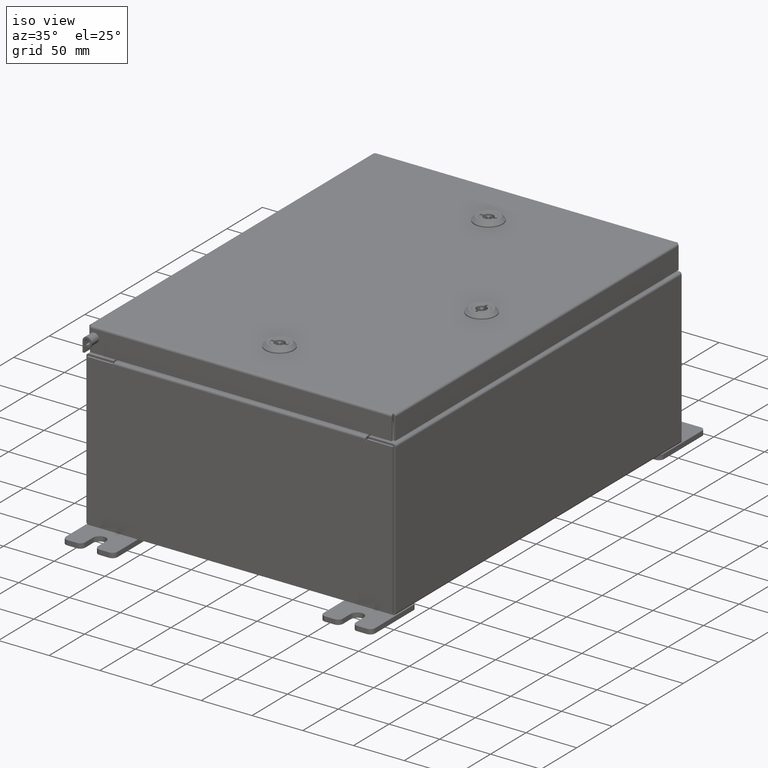
[diagram: clean part render]
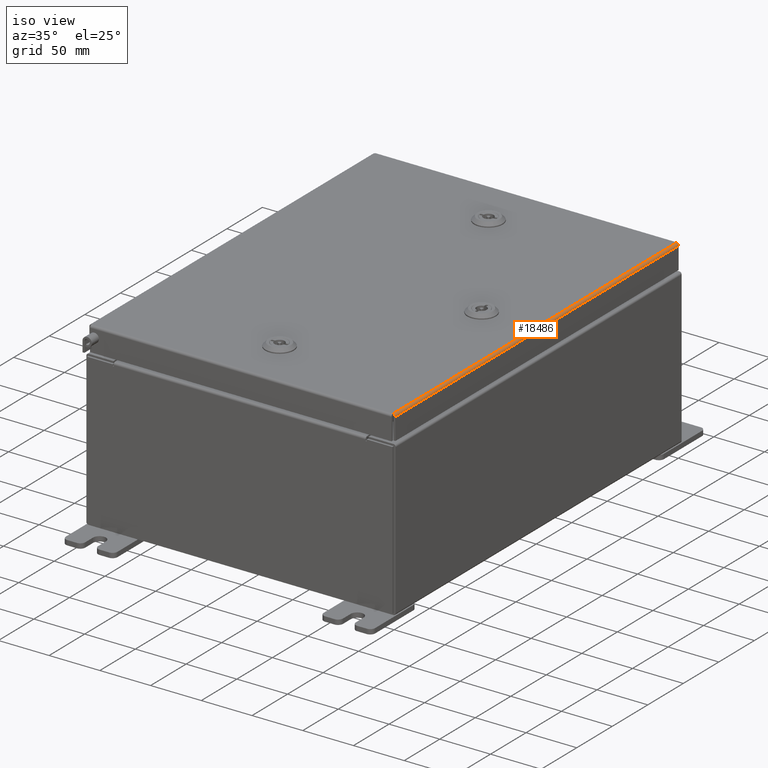
[diagram: same view with one face highlighted and labeled with its STEP entity id]
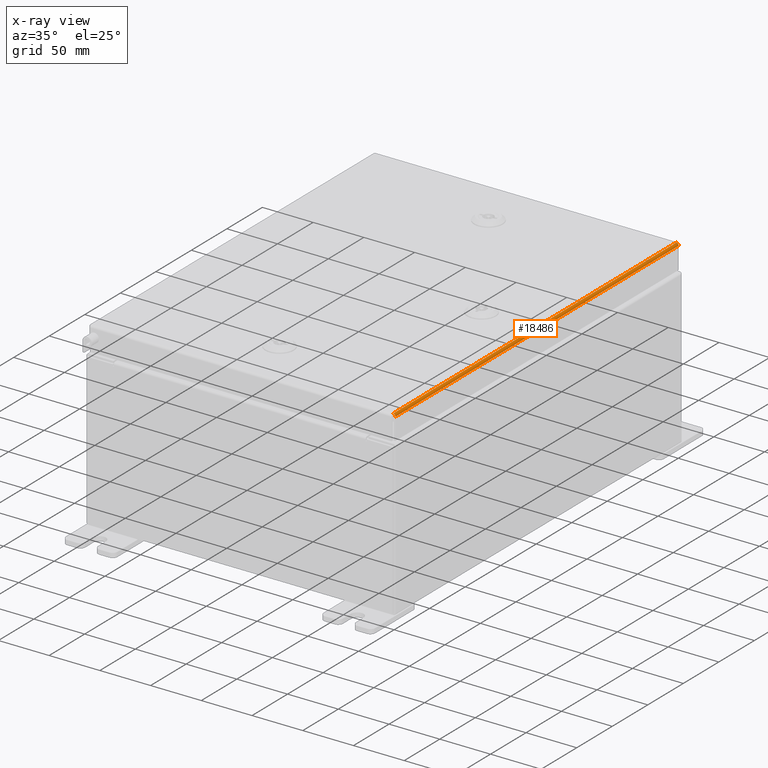
[diagram: x-ray of the same camera — body ghosted, the highlighted face saturated]
A machine part, iso view. The second image highlights one B-rep face of the part: STEP entity #18486.
The next image is the same camera in x-ray: the body ghosted, the highlighted face saturated — about 0% of this face is hidden behind the body in this view.
In plain terms, the highlighted cylindrical surface (edge-blend (fillet) strip) has radius 2.2276 mm, axis along (-0, -1, -0).
Its self-contained STEP definition (entity closure, byte-faithful):
#879 = ORIENTED_EDGE ( 'NONE', *, *, #50613, .F. ) ;
#1245 = CARTESIAN_POINT ( 'NONE',  ( 5.935217403743810600, -7.848848220313558800, -0.06474471054169465800 ) ) ;
#3950 = DIRECTION ( 'NONE',  ( 1.000000000000000000, 0.0000000000000000000, 3.893740013774593800E-015 ) ) ;
#6030 = CARTESIAN_POINT ( 'NONE',  ( 5.919930782078321100, -7.849133754219491400, -0.03380425265820231200 ) ) ;
#6990 = ORIENTED_EDGE ( 'NONE', *, *, #15793, .F. ) ;
#8690 = CARTESIAN_POINT ( 'NONE',  ( 5.849799999999998300, -7.849800000000000100, -0.08770000000000086100 ) ) ;
#9663 = CARTESIAN_POINT ( 'NONE',  ( 5.849799999999998300, 7.849800000000000100, -2.219626494852214000E-016 ) ) ;
#10775 = CARTESIAN_POINT ( 'NONE',  ( 5.893967384578526300, -7.849419288125424100, -0.01106893374133289000 ) ) ;
#11053 = FACE_OUTER_BOUND ( 'NONE', #46169, .T. ) ;
#11295 = DIRECTION ( 'NONE',  ( 2.614747574225769900E-031, -1.000000000000000000, -6.883396519469013400E-017 ) ) ;
#13187 = CARTESIAN_POINT ( 'NONE',  ( 5.872755289458306800, 7.849609644062715200, -0.002282596256189361000 ) ) ;
#14361 = B_SPLINE_CURVE_WITH_KNOTS ( 'NONE', 3,
 ( #41494, #60628, #13187, #46481, #17956, #51300, #22744, #56098, #27502, #60847 ),
 .UNSPECIFIED., .F., .F.,
 ( 4, 2, 2, 2, 4 ),
 ( 0.0000000000000000000, 0.2500000000000000000, 0.5000000000000000000, 0.7500000000000000000, 1.000000000000000000 ),
 .UNSPECIFIED. ) ;
#15572 = CARTESIAN_POINT ( 'NONE',  ( 5.861279903154991400, -7.849704822031356800, -7.687991167716788000E-016 ) ) ;
#15793 = EDGE_CURVE ( 'NONE', #19356, #54212, #29044, .T. ) ;
#16417 = VECTOR ( 'NONE', #52252, 39.37007874015748100 ) ;
#17009 = VECTOR ( 'NONE', #11295, 39.37007874015748100 ) ;
#17956 = CARTESIAN_POINT ( 'NONE',  ( 5.903695747341799000, 7.849324110156780800, -0.01756921792167938700 ) ) ;
#18214 = EDGE_CURVE ( 'NONE', #22861, #44921, #42339, .T. ) ;
#18486 = ADVANCED_FACE ( 'NONE', ( #11053 ), #58728, .T. ) ;
#18747 = ORIENTED_EDGE ( 'NONE', *, *, #18214, .F. ) ;
#19356 = VERTEX_POINT ( 'NONE', #33285 ) ;
#22744 = CARTESIAN_POINT ( 'NONE',  ( 5.926431066258666100, 7.849038576250846300, -0.04353261542147061200 ) ) ;
#22861 = VERTEX_POINT ( 'NONE', #56993 ) ;
#23683 = CARTESIAN_POINT ( 'NONE',  ( 5.849799999999998300, -7.849800000000000100, -7.683322482180740400E-016 ) ) ;
#27502 = CARTESIAN_POINT ( 'NONE',  ( 5.937500000000000000, 7.848753042344914600, -0.07622009684500447000 ) ) ;
#29044 = LINE ( 'NONE', #23683, #16417 ) ;
#29976 = B_SPLINE_CURVE_WITH_KNOTS ( 'NONE', 3,
 ( #53522, #58263, #1245, #34496, #6030, #39317, #10775, #44095, #15572, #48878 ),
 .UNSPECIFIED., .F., .F.,
 ( 4, 2, 2, 2, 4 ),
 ( 0.0000000000000000000, 0.2500000000000000000, 0.5000000000000000000, 0.7500000000000000000, 1.000000000000000000 ),
 .UNSPECIFIED. ) ;
#33285 = CARTESIAN_POINT ( 'NONE',  ( 5.849799999999998300, -7.849800000000000100, -7.683322482180740400E-016 ) ) ;
#34496 = CARTESIAN_POINT ( 'NONE',  ( 5.926431066258667000, -7.849038576250843700, -0.04353261542147486600 ) ) ;
#39317 = CARTESIAN_POINT ( 'NONE',  ( 5.903695747341801700, -7.849324110156779900, -0.01756921792168121900 ) ) ;
#39811 = CARTESIAN_POINT ( 'NONE',  ( 5.937499999999998200, 6.036738747575930900E-018, -0.08770000000000052800 ) ) ;
#41494 = CARTESIAN_POINT ( 'NONE',  ( 5.849799999999998300, 7.849800000000000100, -2.219626494852214000E-016 ) ) ;
#42339 = LINE ( 'NONE', #39811, #17009 ) ;
#44095 = CARTESIAN_POINT ( 'NONE',  ( 5.872755289458308600, -7.849609644062711700, -0.002282596256189604700 ) ) ;
#44921 = VERTEX_POINT ( 'NONE', #59947 ) ;
#46169 = EDGE_LOOP ( 'NONE', ( #6990, #52817, #18747, #879 ) ) ;
#46481 = CARTESIAN_POINT ( 'NONE',  ( 5.893967384578524500, 7.849419288125424100, -0.01106893374133173300 ) ) ;
#46779 = DIRECTION ( 'NONE',  ( -0.0000000000000000000, -1.000000000000000000, -0.0000000000000000000 ) ) ;
#48878 = CARTESIAN_POINT ( 'NONE',  ( 5.849799999999998300, -7.849800000000000100, -7.683322482180740400E-016 ) ) ;
#50367 = EDGE_CURVE ( 'NONE', #44921, #19356, #29976, .T. ) ;
#50613 = EDGE_CURVE ( 'NONE', #54212, #22861, #14361, .T. ) ;
#51300 = CARTESIAN_POINT ( 'NONE',  ( 5.919930782078317600, 7.849133754219493200, -0.03380425265819892600 ) ) ;
#52252 = DIRECTION ( 'NONE',  ( 0.0000000000000000000, 1.000000000000000000, 0.0000000000000000000 ) ) ;
#52817 = ORIENTED_EDGE ( 'NONE', *, *, #50367, .F. ) ;
#53522 = CARTESIAN_POINT ( 'NONE',  ( 5.937499999999998200, -7.848657864376269400, -0.08770000000000106900 ) ) ;
#54212 = VERTEX_POINT ( 'NONE', #9663 ) ;
#56098 = CARTESIAN_POINT ( 'NONE',  ( 5.935217403743809700, 7.848848220313557900, -0.06474471054168874600 ) ) ;
#56993 = CARTESIAN_POINT ( 'NONE',  ( 5.937499999999998200, 7.848657864376269400, -0.08770000000000052800 ) ) ;
#58263 = CARTESIAN_POINT ( 'NONE',  ( 5.937499999999998200, -7.848753042344911000, -0.07622009684501120100 ) ) ;
#58728 = CYLINDRICAL_SURFACE ( 'NONE', #59504, 0.08770000000000026400 ) ;
#59504 = AXIS2_PLACEMENT_3D ( 'NONE', #8690, #46779, #3950 ) ;
#59947 = CARTESIAN_POINT ( 'NONE',  ( 5.937499999999998200, -7.848657864376269400, -0.08770000000000106900 ) ) ;
#60628 = CARTESIAN_POINT ( 'NONE',  ( 5.861279903154988700, 7.849704822031355900, -7.695327673559145500E-016 ) ) ;
#60847 = CARTESIAN_POINT ( 'NONE',  ( 5.937499999999998200, 7.848657864376269400, -0.08770000000000052800 ) ) ;